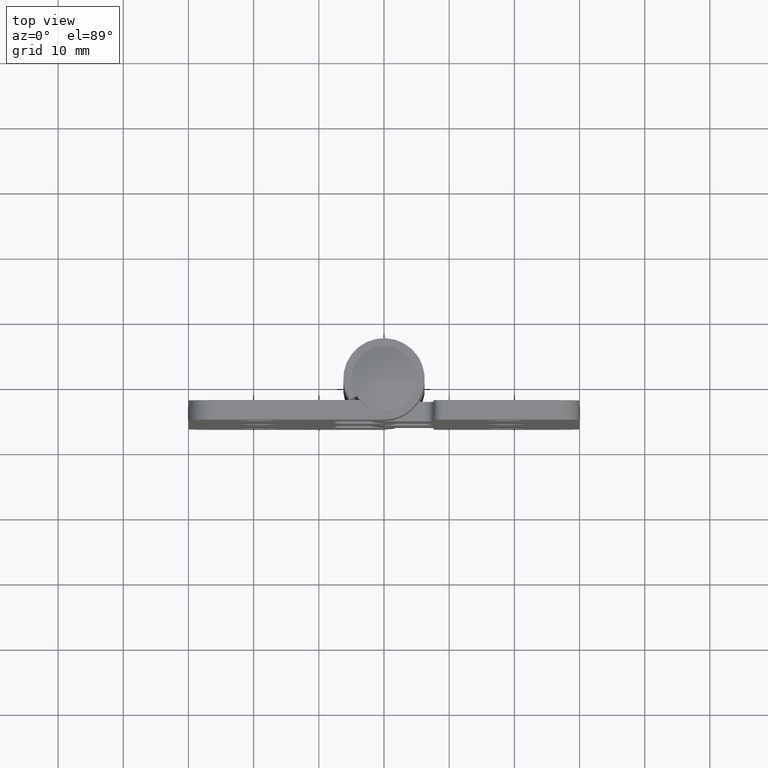
[diagram: clean part render]
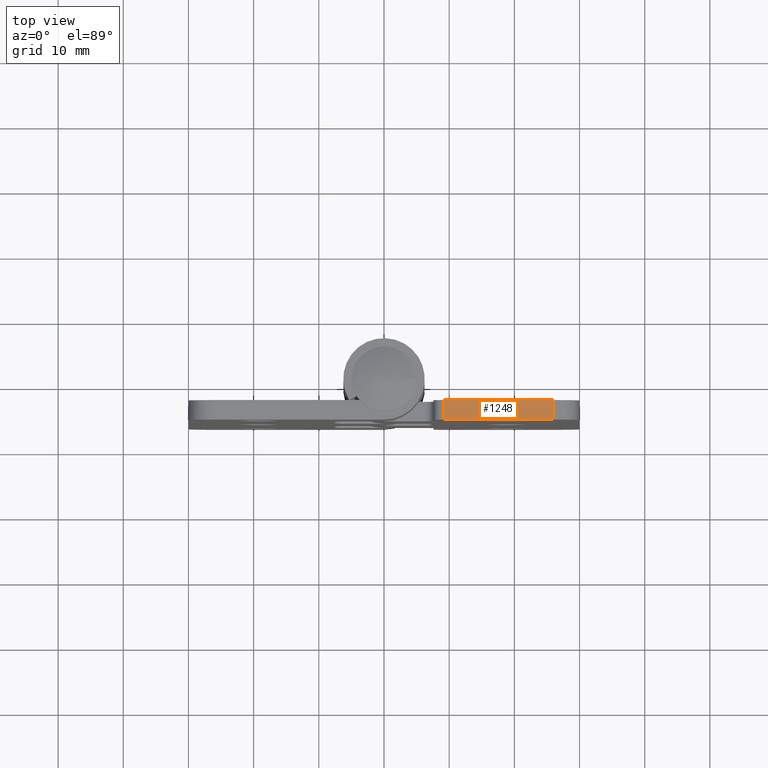
[diagram: same view with one face highlighted and labeled with its STEP entity id]
A machine part, top view. The second image highlights one B-rep face of the part: STEP entity #1248.
In plain terms, the highlighted planar face has unit normal (0, 0, -1).
Its self-contained STEP definition (entity closure, byte-faithful):
#82=PLANE('',#1366);
#134=FACE_OUTER_BOUND('',#216,.T.);
#216=EDGE_LOOP('',(#1034,#1035,#1036,#1037));
#329=LINE('',#2037,#435);
#331=LINE('',#2053,#437);
#333=LINE('',#2057,#439);
#334=LINE('',#2058,#440);
#435=VECTOR('',#1644,16.9);
#437=VECTOR('',#1660,3.);
#439=VECTOR('',#1664,16.9);
#440=VECTOR('',#1665,3.);
#612=VERTEX_POINT('',#2034);
#613=VERTEX_POINT('',#2036);
#620=VERTEX_POINT('',#2051);
#621=VERTEX_POINT('',#2056);
#758=EDGE_CURVE('',#613,#612,#329,.T.);
#766=EDGE_CURVE('',#620,#612,#331,.T.);
#768=EDGE_CURVE('',#620,#621,#333,.T.);
#769=EDGE_CURVE('',#613,#621,#334,.T.);
#1034=ORIENTED_EDGE('',*,*,#766,.F.);
#1035=ORIENTED_EDGE('',*,*,#768,.T.);
#1036=ORIENTED_EDGE('',*,*,#769,.F.);
#1037=ORIENTED_EDGE('',*,*,#758,.T.);
#1248=ADVANCED_FACE('',(#134),#82,.F.);
#1366=AXIS2_PLACEMENT_3D('',#2055,#1662,#1663);
#1644=DIRECTION('',(1.,1.29526019539602E-16,0.));
#1660=DIRECTION('',(-1.38777878078145E-16,1.,0.));
#1662=DIRECTION('center_axis',(0.,0.,1.));
#1663=DIRECTION('ref_axis',(1.,0.,0.));
#1664=DIRECTION('',(-1.,-1.48029736616688E-16,0.));
#1665=DIRECTION('',(0.,-1.,0.));
#2034=CARTESIAN_POINT('',(-9.10000000000001,-3.25,-45.));
#2036=CARTESIAN_POINT('',(-26.,-3.25,-45.));
#2037=CARTESIAN_POINT('',(3.9801020972289E-16,-3.25,-45.));
#2051=CARTESIAN_POINT('',(-9.10000000000001,-6.25,-45.));
#2053=CARTESIAN_POINT('',(-9.10000000000001,-3.125,-45.));
#2055=CARTESIAN_POINT('Origin',(-11.875,-1.11022302462516E-15,-45.));
#2056=CARTESIAN_POINT('',(-26.,-6.25,-45.));
#2057=CARTESIAN_POINT('',(-30.,-6.25,-45.));
#2058=CARTESIAN_POINT('',(-26.,-1.625,-45.));